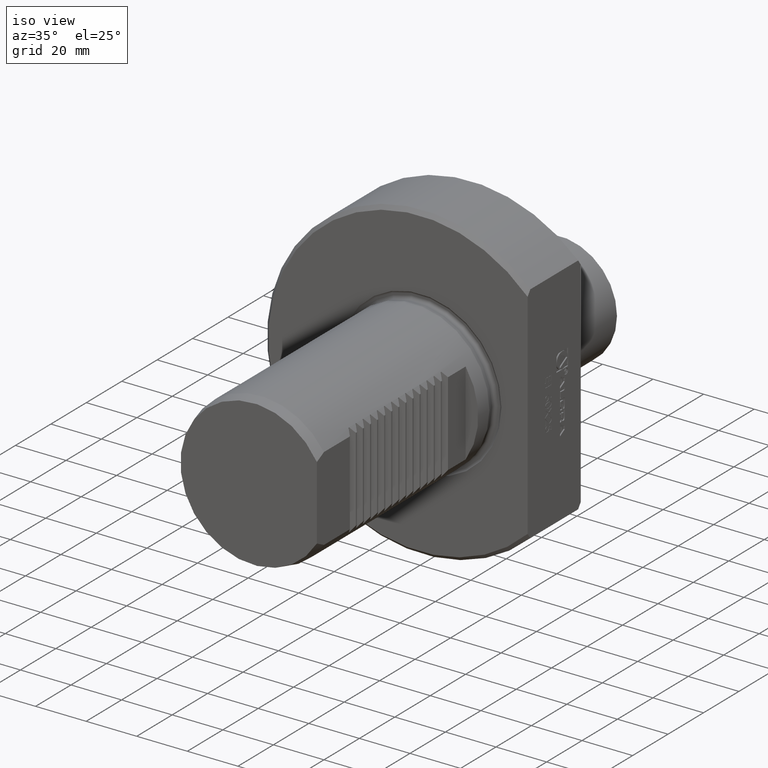
[diagram: clean part render]
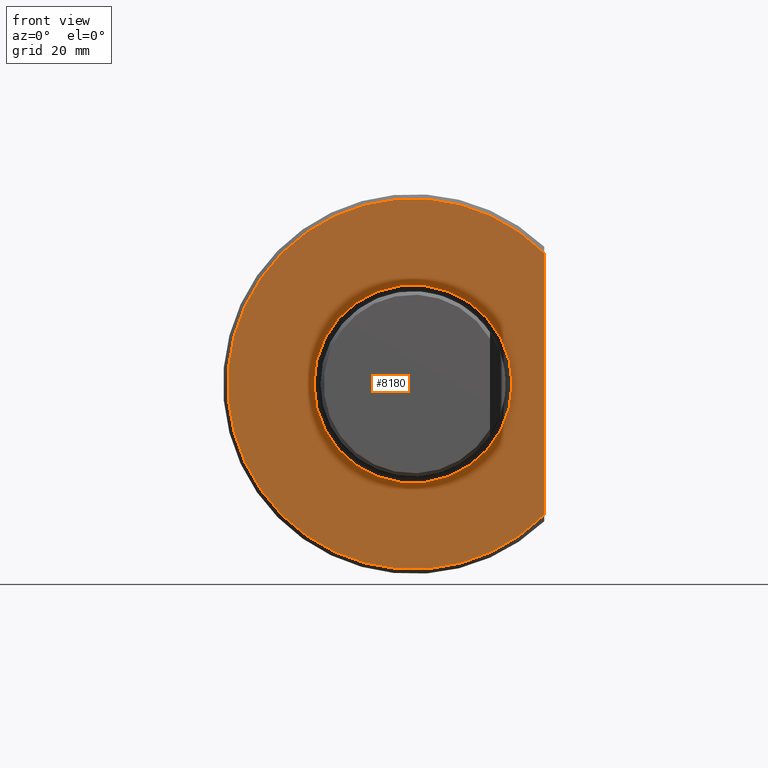
[diagram: tour spotlight — one face highlighted and labeled with its STEP entity id]
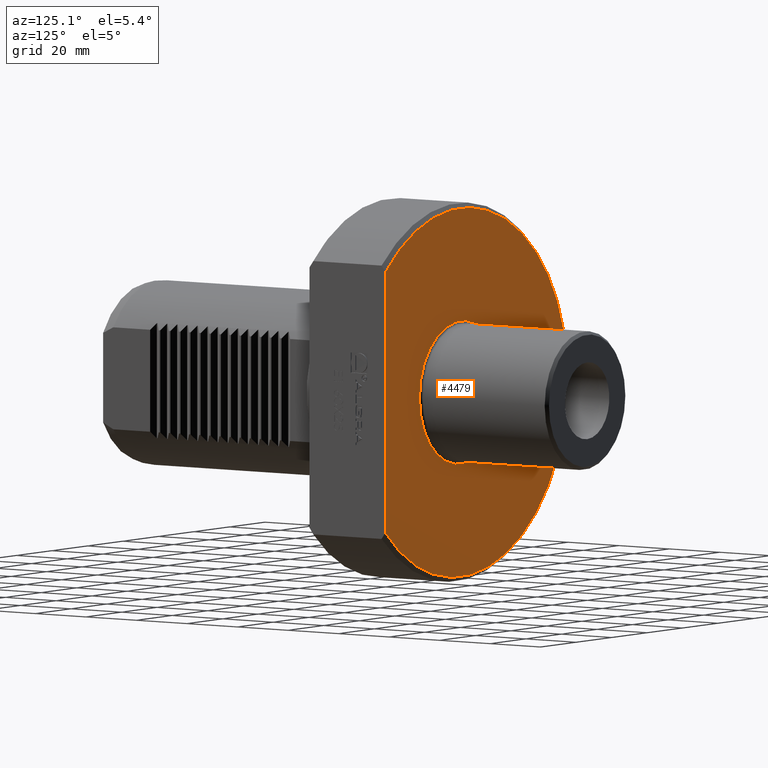
[diagram: tour spotlight — one face highlighted and labeled with its STEP entity id]
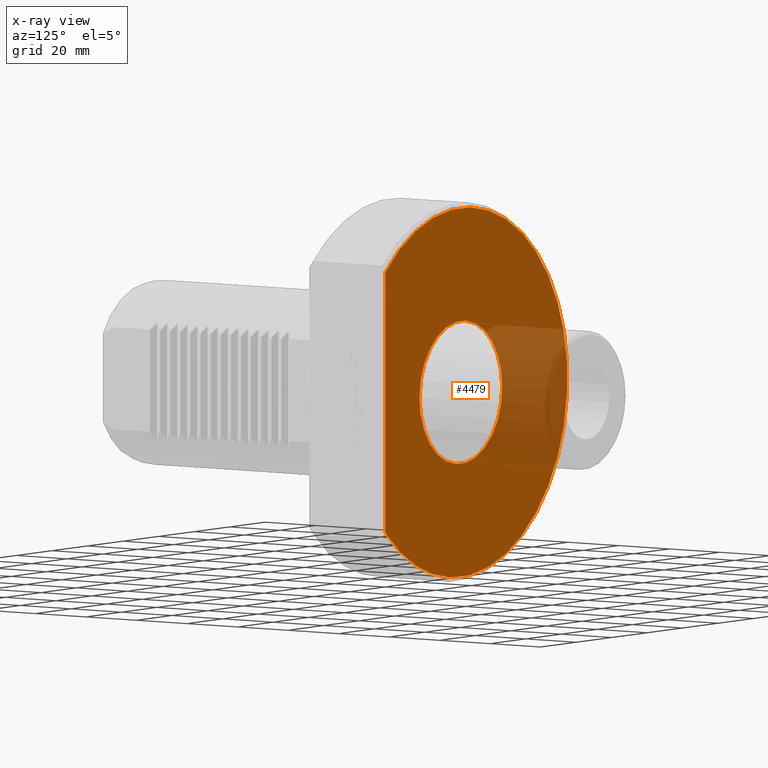
[diagram: x-ray of the same camera — body ghosted, this tour face saturated]
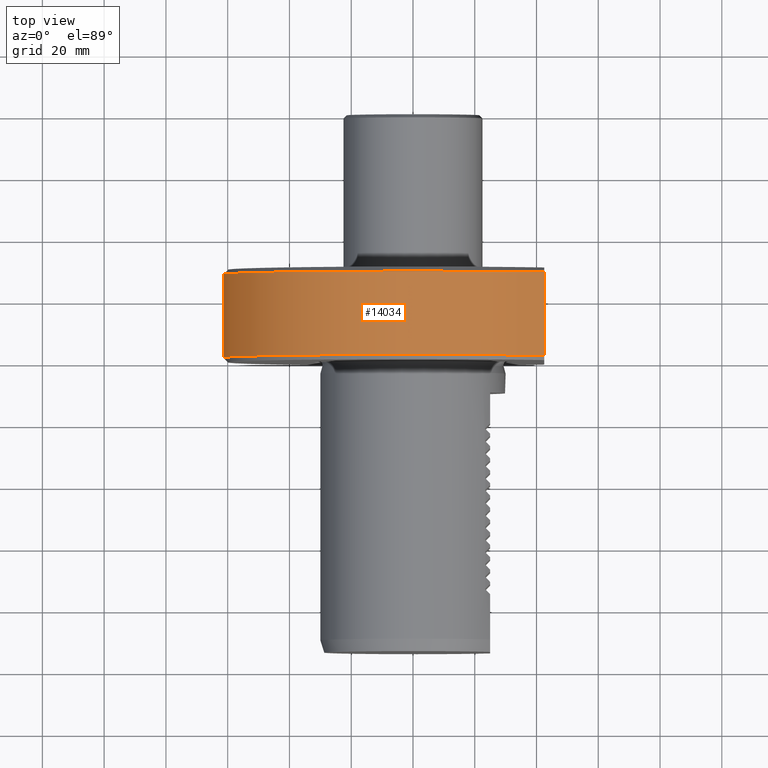
[diagram: tour spotlight — one face highlighted and labeled with its STEP entity id]
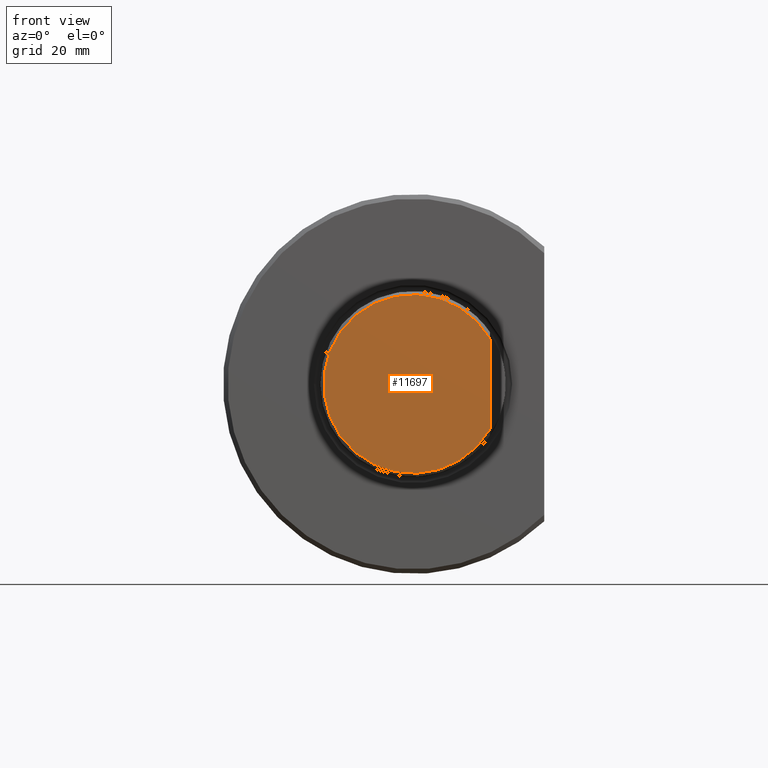
[diagram: tour spotlight — one face highlighted and labeled with its STEP entity id]
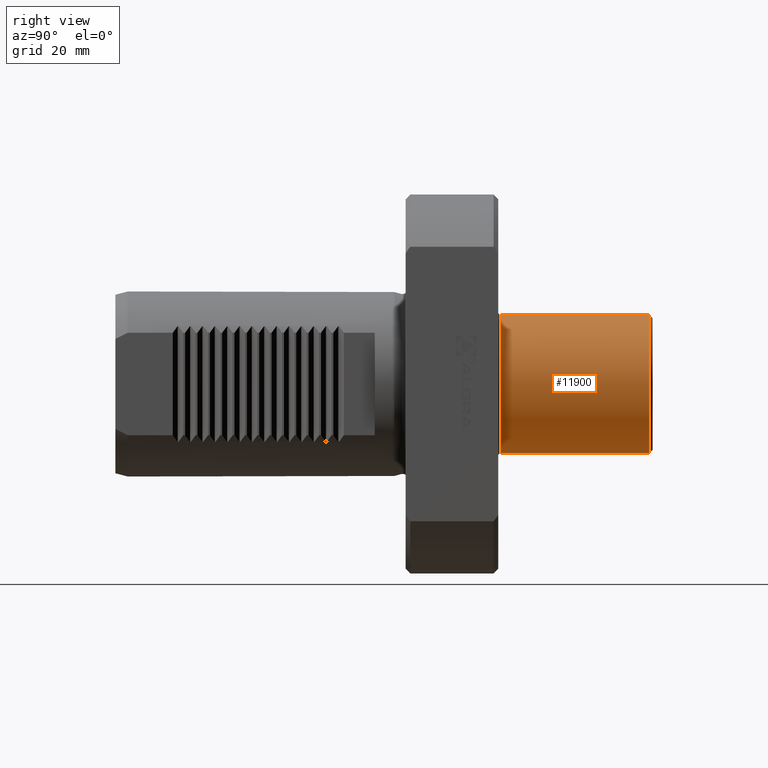
[diagram: tour spotlight — one face highlighted and labeled with its STEP entity id]
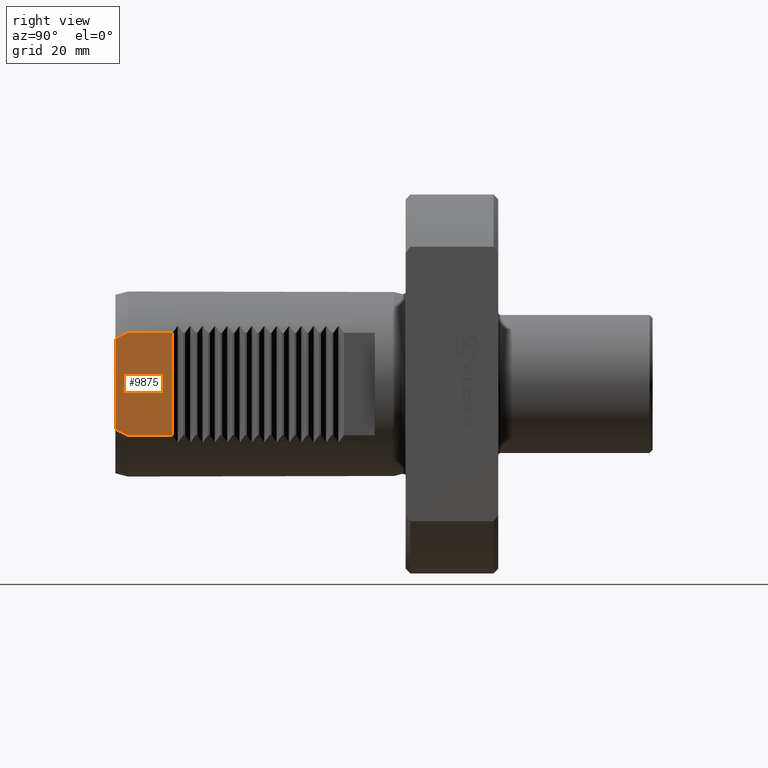
[diagram: tour spotlight — one face highlighted and labeled with its STEP entity id]
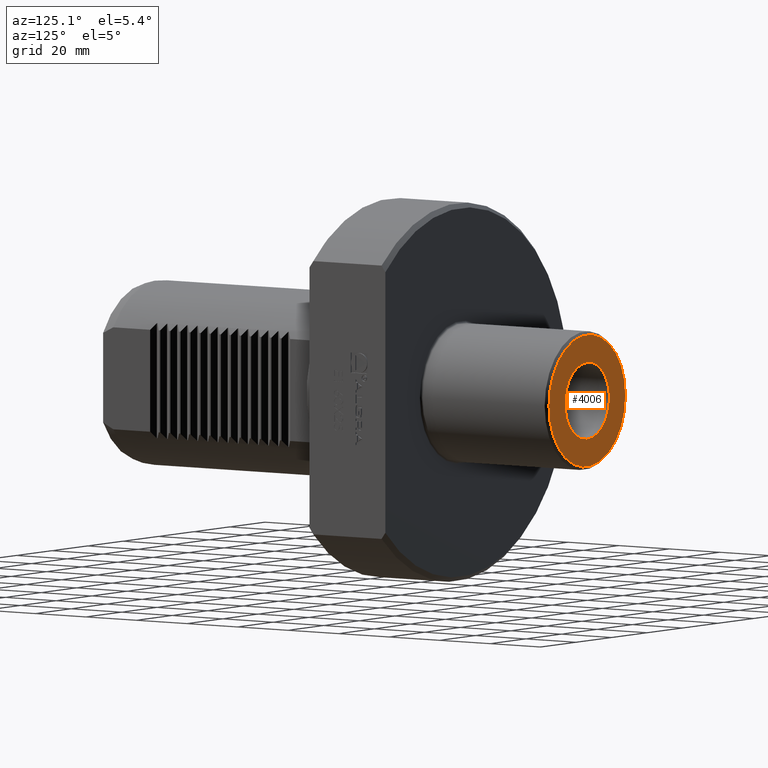
[diagram: tour spotlight — one face highlighted and labeled with its STEP entity id]
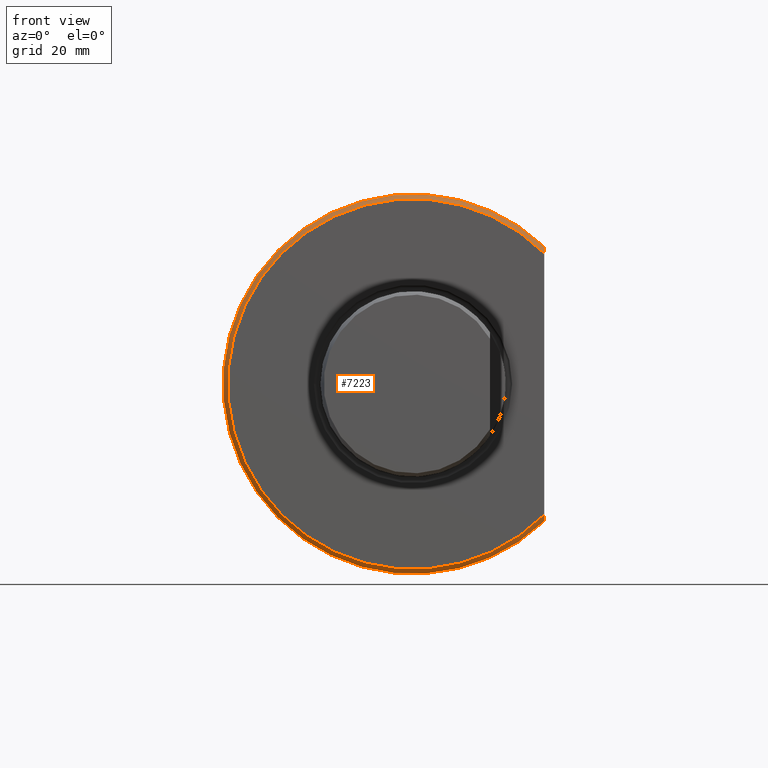
[diagram: tour spotlight — one face highlighted and labeled with its STEP entity id]
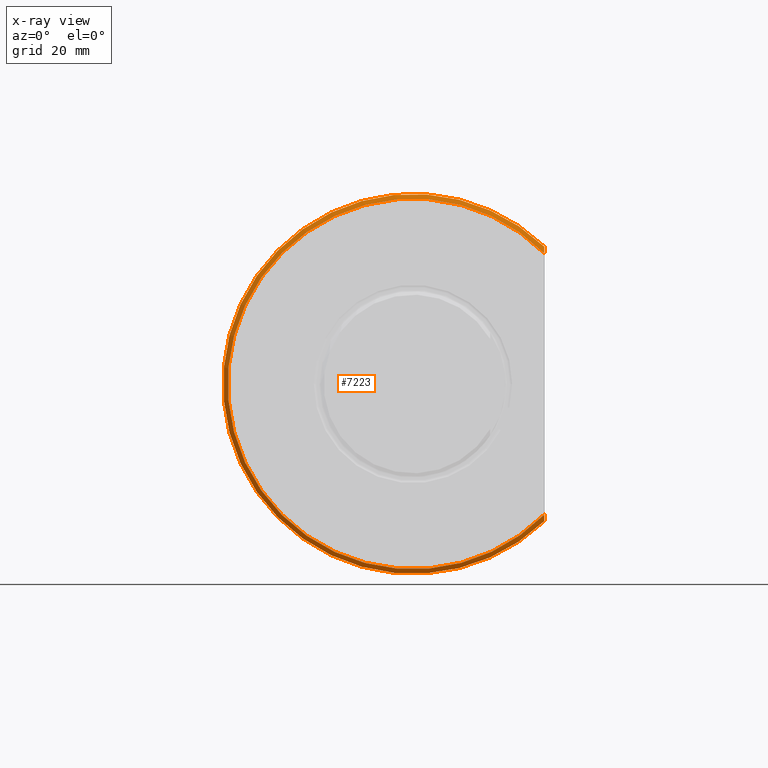
[diagram: x-ray of the same camera — body ghosted, this tour face saturated]
A machine part: a face-by-face anatomy tour. The part has 283 B-rep faces; the first image is the clean iso view, then the 8 largest visible faces are spotlighted one at a time (largest first), each with its STEP entity span.

Face 1 — front view, entity #8180. In plain terms, the highlighted planar face has unit normal (0, -1, 0).
Definition (entity closure, byte-faithful):
#385 = CARTESIAN_POINT ( 'NONE',  ( 42.49999999999999289, 9.254589815476564682E-15, -42.35268586524354362 ) ) ;
#429 = CARTESIAN_POINT ( 'NONE',  ( 42.50000000000000711, 1.281975731971740041E-14, 42.35268586524352941 ) ) ;
#660 = FACE_BOUND ( 'NONE', #4711, .T. ) ;
#895 = DIRECTION ( 'NONE',  ( -1.295371175675670281E-16, 1.000000000000000000, -0.000000000000000000 ) ) ;
#1060 = ORIENTED_EDGE ( 'NONE', *, *, #10142, .F. ) ;
#1361 = ORIENTED_EDGE ( 'NONE', *, *, #7985, .F. ) ;
#1800 = DIRECTION ( 'NONE',  ( -1.000000000000000000, -1.295371175675670281E-16, 0.000000000000000000 ) ) ;
#2127 = CIRCLE ( 'NONE', #10092, 60.00000000000000000 ) ;
#2177 = CARTESIAN_POINT ( 'NONE',  ( 42.50000000000000000, 9.156106121160882486E-15, -1.264699656675814893E-14 ) ) ;
#2284 = ORIENTED_EDGE ( 'NONE', *, *, #7030, .F. ) ;
#2754 = FACE_OUTER_BOUND ( 'NONE', #12183, .T. ) ;
#2838 = AXIS2_PLACEMENT_3D ( 'NONE', #4979, #8293, #8015 ) ;
#3626 = VECTOR ( 'NONE', #8748, 1000.000000000000000 ) ;
#4240 = LINE ( 'NONE', #2177, #3626 ) ;
#4711 = EDGE_LOOP ( 'NONE', ( #1361 ) ) ;
#4979 = CARTESIAN_POINT ( 'NONE',  ( -32.14999999999999147, -5.138397052579944321E-16, 0.000000000000000000 ) ) ;
#5609 = AXIS2_PLACEMENT_3D ( 'NONE', #11937, #9927, #10936 ) ;
#6810 = VERTEX_POINT ( 'NONE', #429 ) ;
#7030 = EDGE_CURVE ( 'NONE', #6810, #12728, #4240, .T. ) ;
#7627 = CARTESIAN_POINT ( 'NONE',  ( 32.09480944164828031, 7.735336273153617276E-15, 0.000000000000000000 ) ) ;
#7985 = EDGE_CURVE ( 'NONE', #11863, #11863, #12197, .T. ) ;
#8015 = DIRECTION ( 'NONE',  ( 1.000000000000000000, 1.295371175675670281E-16, 0.000000000000000000 ) ) ;
#8091 = PLANE ( 'NONE',  #2838 ) ;
#8180 = ADVANCED_FACE ( 'Defeature completata1_9', ( #2754, #660 ), #8091, .T. ) ;
#8293 = DIRECTION ( 'NONE',  ( 1.295371175675670281E-16, -1.000000000000000000, 0.000000000000000000 ) ) ;
#8748 = DIRECTION ( 'NONE',  ( -1.694172346518171389E-16, -2.194582024306452695E-32, -1.000000000000000000 ) ) ;
#9180 = CARTESIAN_POINT ( 'NONE',  ( -4.856686337891648901E-31, 3.749262318854966901E-15, 0.000000000000000000 ) ) ;
#9927 = DIRECTION ( 'NONE',  ( 1.295371175675670281E-16, -1.000000000000000000, 0.000000000000000000 ) ) ;
#10092 = AXIS2_PLACEMENT_3D ( 'NONE', #9180, #895, #1800 ) ;
#10142 = EDGE_CURVE ( 'NONE', #12728, #6810, #2127, .T. ) ;
#10936 = DIRECTION ( 'NONE',  ( 1.000000000000000000, 1.295371175675670281E-16, 0.000000000000000000 ) ) ;
#11863 = VERTEX_POINT ( 'NONE', #7627 ) ;
#11937 = CARTESIAN_POINT ( 'NONE',  ( -1.036296940540534203E-16, 3.577867169202164632E-15, 0.000000000000000000 ) ) ;
#12183 = EDGE_LOOP ( 'NONE', ( #2284, #1060 ) ) ;
#12197 = CIRCLE ( 'NONE', #5609, 32.09480944164828031 ) ;
#12728 = VERTEX_POINT ( 'NONE', #385 ) ;

Face 2 — auxiliary view, entity #4479. An x-ray twin of the same camera follows (body ghosted, this face saturated) — the face is partly hidden behind the body. In plain terms, the highlighted planar face has unit normal (-0, 1, 0).
Definition (entity closure, byte-faithful):
#524 = DIRECTION ( 'NONE',  ( -1.295371175675670281E-16, 1.000000000000000000, -0.000000000000000000 ) ) ;
#566 = VERTEX_POINT ( 'NONE', #11702 ) ;
#1414 = EDGE_LOOP ( 'NONE', ( #10128, #14024 ) ) ;
#1557 = DIRECTION ( 'NONE',  ( -1.000000000000000000, -1.156482317317871478E-16, 0.000000000000000000 ) ) ;
#2174 = CARTESIAN_POINT ( 'NONE',  ( -23.30000000000000071, 30.00000000000000000, 0.000000000000000000 ) ) ;
#2255 = CARTESIAN_POINT ( 'NONE',  ( 42.50000000000000000, 30.00000000000001421, -42.35268586524351520 ) ) ;
#2358 = CIRCLE ( 'NONE', #3487, 59.99999999999999289 ) ;
#2489 = PLANE ( 'NONE',  #6770 ) ;
#3487 = AXIS2_PLACEMENT_3D ( 'NONE', #10046, #524, #1557 ) ;
#3699 = CARTESIAN_POINT ( 'NONE',  ( -60.00000000000000000, 29.99999999999999645, 0.000000000000000000 ) ) ;
#4079 = DIRECTION ( 'NONE',  ( 1.694172346518171389E-16, 2.194582024306452695E-32, 1.000000000000000000 ) ) ;
#4394 = ORIENTED_EDGE ( 'NONE', *, *, #8593, .F. ) ;
#4479 = ADVANCED_FACE ( 'Defeature completata1_13', ( #13330, #8012 ), #2489, .T. ) ;
#5399 = DIRECTION ( 'NONE',  ( -1.295371175675670281E-16, 1.000000000000000000, -0.000000000000000000 ) ) ;
#5514 = AXIS2_PLACEMENT_3D ( 'NONE', #7702, #5399, #5692 ) ;
#5692 = DIRECTION ( 'NONE',  ( -1.000000000000000000, -1.489033026589534122E-16, 0.000000000000000000 ) ) ;
#6770 = AXIS2_PLACEMENT_3D ( 'NONE', #3699, #12409, #10038 ) ;
#7702 = CARTESIAN_POINT ( 'NONE',  ( -3.886113527027010941E-15, 30.00000000000000355, 0.000000000000000000 ) ) ;
#8012 = FACE_BOUND ( 'NONE', #9983, .T. ) ;
#8593 = EDGE_CURVE ( 'NONE', #11939, #11939, #11425, .T. ) ;
#9856 = EDGE_CURVE ( 'NONE', #13934, #566, #2358, .T. ) ;
#9983 = EDGE_LOOP ( 'NONE', ( #4394 ) ) ;
#10038 = DIRECTION ( 'NONE',  ( -1.000000000000000000, -1.295371175675670281E-16, 0.000000000000000000 ) ) ;
#10046 = CARTESIAN_POINT ( 'NONE',  ( -3.886113527027011730E-15, 30.00000000000000711, 0.000000000000000000 ) ) ;
#10128 = ORIENTED_EDGE ( 'NONE', *, *, #10555, .F. ) ;
#10355 = CARTESIAN_POINT ( 'NONE',  ( 42.50000000000000711, 30.00000000000001066, -1.736526655181126062E-14 ) ) ;
#10555 = EDGE_CURVE ( 'NONE', #13934, #566, #10570, .T. ) ;
#10570 = LINE ( 'NONE', #10355, #10711 ) ;
#10711 = VECTOR ( 'NONE', #4079, 1000.000000000000000 ) ;
#11425 = CIRCLE ( 'NONE', #5514, 23.29999999999999716 ) ;
#11702 = CARTESIAN_POINT ( 'NONE',  ( 42.50000000000000711, 30.00000000000001066, 42.35268586524350098 ) ) ;
#11939 = VERTEX_POINT ( 'NONE', #2174 ) ;
#12409 = DIRECTION ( 'NONE',  ( -1.295371175675670281E-16, 1.000000000000000000, 0.000000000000000000 ) ) ;
#13330 = FACE_OUTER_BOUND ( 'NONE', #1414, .T. ) ;
#13934 = VERTEX_POINT ( 'NONE', #2255 ) ;
#14024 = ORIENTED_EDGE ( 'NONE', *, *, #9856, .T. ) ;

Face 3 — top view, entity #14034. In plain terms, the highlighted cylindrical surface (partial cylindrical patch) has radius 61.5 mm, axis along (-0, 1, -0).
Definition (entity closure, byte-faithful):
#288 = AXIS2_PLACEMENT_3D ( 'NONE', #6275, #3971, #8811 ) ;
#406 = VERTEX_POINT ( 'NONE', #8955 ) ;
#699 = CARTESIAN_POINT ( 'NONE',  ( 0.000000000000000000, 0.000000000000000000, 0.000000000000000000 ) ) ;
#1796 = CARTESIAN_POINT ( 'NONE',  ( 42.50000000000000711, 1.499999999999995781, 44.45222154178572538 ) ) ;
#2522 = VERTEX_POINT ( 'NONE', #4049 ) ;
#2595 = VECTOR ( 'NONE', #11501, 1000.000000000000000 ) ;
#2782 = EDGE_CURVE ( 'NONE', #406, #6937, #8695, .T. ) ;
#3272 = CARTESIAN_POINT ( 'NONE',  ( 42.50000000000000711, 28.50000000000000711, 44.45222154178571117 ) ) ;
#3278 = CARTESIAN_POINT ( 'NONE',  ( 42.49999999999999289, 5.505327496621598570E-15, -44.45222154178573959 ) ) ;
#3429 = ORIENTED_EDGE ( 'NONE', *, *, #2782, .T. ) ;
#3963 = DIRECTION ( 'NONE',  ( -1.000000000000000000, -1.295371175675670281E-16, 0.000000000000000000 ) ) ;
#3971 = DIRECTION ( 'NONE',  ( -1.295371175675670281E-16, 1.000000000000000000, -0.000000000000000000 ) ) ;
#4027 = DIRECTION ( 'NONE',  ( -1.295371175675670281E-16, 1.000000000000000000, -0.000000000000000000 ) ) ;
#4049 = CARTESIAN_POINT ( 'NONE',  ( 42.49999999999998579, 28.49999999999999645, -44.45222154178573959 ) ) ;
#5173 = DIRECTION ( 'NONE',  ( -1.295371175675670281E-16, 1.000000000000000000, -0.000000000000000000 ) ) ;
#5304 = VECTOR ( 'NONE', #6749, 1000.000000000000000 ) ;
#5360 = VERTEX_POINT ( 'NONE', #3272 ) ;
#5433 = LINE ( 'NONE', #3278, #5304 ) ;
#6085 = ORIENTED_EDGE ( 'NONE', *, *, #9690, .F. ) ;
#6169 = CARTESIAN_POINT ( 'NONE',  ( 42.50000000000000711, 5.505327496621600148E-15, 44.45222154178572538 ) ) ;
#6275 = CARTESIAN_POINT ( 'NONE',  ( -1.943056763513510352E-16, 1.500000000000003775, 0.000000000000000000 ) ) ;
#6749 = DIRECTION ( 'NONE',  ( -1.295371175675670281E-16, 1.000000000000000000, -0.000000000000000000 ) ) ;
#6937 = VERTEX_POINT ( 'NONE', #1796 ) ;
#7351 = CYLINDRICAL_SURFACE ( 'NONE', #11447, 61.50000000000000000 ) ;
#7583 = CIRCLE ( 'NONE', #10040, 61.49999999999999289 ) ;
#7624 = ORIENTED_EDGE ( 'NONE', *, *, #13250, .F. ) ;
#8339 = EDGE_LOOP ( 'NONE', ( #7624, #8851, #6085, #3429 ) ) ;
#8695 = CIRCLE ( 'NONE', #288, 61.50000000000000000 ) ;
#8811 = DIRECTION ( 'NONE',  ( -1.000000000000000000, -1.304568467706135415E-16, 0.000000000000000000 ) ) ;
#8851 = ORIENTED_EDGE ( 'NONE', *, *, #10950, .F. ) ;
#8955 = CARTESIAN_POINT ( 'NONE',  ( 42.49999999999999289, 1.500000000000006439, -44.45222154178573959 ) ) ;
#9690 = EDGE_CURVE ( 'NONE', #406, #2522, #5433, .T. ) ;
#10040 = AXIS2_PLACEMENT_3D ( 'NONE', #10509, #5173, #11804 ) ;
#10411 = LINE ( 'NONE', #6169, #2595 ) ;
#10426 = FACE_OUTER_BOUND ( 'NONE', #8339, .T. ) ;
#10509 = CARTESIAN_POINT ( 'NONE',  ( -3.691807850675660867E-15, 28.50000000000000355, 0.000000000000000000 ) ) ;
#10950 = EDGE_CURVE ( 'NONE', #2522, #5360, #7583, .T. ) ;
#11447 = AXIS2_PLACEMENT_3D ( 'NONE', #699, #4027, #3963 ) ;
#11501 = DIRECTION ( 'NONE',  ( 1.295371175675670281E-16, -1.000000000000000000, 0.000000000000000000 ) ) ;
#11804 = DIRECTION ( 'NONE',  ( -1.000000000000000000, -1.128275431529630729E-16, 0.000000000000000000 ) ) ;
#13250 = EDGE_CURVE ( 'NONE', #5360, #6937, #10411, .T. ) ;
#14034 = ADVANCED_FACE ( 'Defeature completata1_11', ( #10426 ), #7351, .T. ) ;

Face 4 — front view, entity #11697. In plain terms, the highlighted planar face has unit normal (0, -1, 0).
Definition (entity closure, byte-faithful):
#1487 = VERTEX_POINT ( 'NONE', #5367 ) ;
#1564 = CARTESIAN_POINT ( 'NONE',  ( 24.99999999999995026, -93.99999999999998579, 0.000000000000000000 ) ) ;
#2074 = AXIS2_PLACEMENT_3D ( 'NONE', #9806, #10966, #10675 ) ;
#2267 = CIRCLE ( 'NONE', #2491, 28.92820323027550344 ) ;
#2491 = AXIS2_PLACEMENT_3D ( 'NONE', #9302, #5237, #3002 ) ;
#3002 = DIRECTION ( 'NONE',  ( -1.000000000000000000, 0.000000000000000000, 0.000000000000000000 ) ) ;
#3571 = EDGE_LOOP ( 'NONE', ( #5295, #6751 ) ) ;
#5237 = DIRECTION ( 'NONE',  ( -1.295371175675670281E-16, 1.000000000000000000, -0.000000000000000000 ) ) ;
#5295 = ORIENTED_EDGE ( 'NONE', *, *, #6864, .F. ) ;
#5367 = CARTESIAN_POINT ( 'NONE',  ( 24.99999999999995026, -94.00000000000000000, 14.55475668405780176 ) ) ;
#6573 = FACE_OUTER_BOUND ( 'NONE', #3571, .T. ) ;
#6751 = ORIENTED_EDGE ( 'NONE', *, *, #13416, .T. ) ;
#6864 = EDGE_CURVE ( 'NONE', #9253, #1487, #2267, .T. ) ;
#8777 = VECTOR ( 'NONE', #10059, 1000.000000000000000 ) ;
#9253 = VERTEX_POINT ( 'NONE', #13809 ) ;
#9302 = CARTESIAN_POINT ( 'NONE',  ( 1.217648905135130074E-14, -94.00000000000000000, 0.000000000000000000 ) ) ;
#9806 = CARTESIAN_POINT ( 'NONE',  ( -28.92820323027548923, -94.00000000000000000, 0.000000000000000000 ) ) ;
#10059 = DIRECTION ( 'NONE',  ( 0.000000000000000000, 0.000000000000000000, 1.000000000000000000 ) ) ;
#10675 = DIRECTION ( 'NONE',  ( 1.000000000000000000, 1.295371175675670281E-16, 0.000000000000000000 ) ) ;
#10966 = DIRECTION ( 'NONE',  ( 1.295371175675670281E-16, -1.000000000000000000, 0.000000000000000000 ) ) ;
#11358 = LINE ( 'NONE', #1564, #8777 ) ;
#11697 = ADVANCED_FACE ( 'Defeature completata1_2', ( #6573 ), #11760, .T. ) ;
#11760 = PLANE ( 'NONE',  #2074 ) ;
#13416 = EDGE_CURVE ( 'NONE', #9253, #1487, #11358, .T. ) ;
#13809 = CARTESIAN_POINT ( 'NONE',  ( 24.99999999999995026, -94.00000000000000000, -14.55475668405780176 ) ) ;

Face 5 — right view, entity #11900. In plain terms, the highlighted cylindrical surface (bore or boss wall) has radius 22.5 mm, axis along (-0, 1, -0).
Definition (entity closure, byte-faithful):
#1279 = DIRECTION ( 'NONE',  ( -1.000000000000000000, -1.295371175675670281E-16, 0.000000000000000000 ) ) ;
#1692 = DIRECTION ( 'NONE',  ( -1.295371175675670281E-16, 1.000000000000000000, -0.000000000000000000 ) ) ;
#2130 = DIRECTION ( 'NONE',  ( -1.295371175675670281E-16, 1.000000000000000000, -0.000000000000000000 ) ) ;
#2495 = DIRECTION ( 'NONE',  ( -1.295371175675670281E-16, 1.000000000000000000, -0.000000000000000000 ) ) ;
#2555 = EDGE_CURVE ( 'NONE', #7835, #7835, #12787, .T. ) ;
#2756 = CARTESIAN_POINT ( 'NONE',  ( -3.989743221081063893E-15, 30.79999999999999716, 0.000000000000000000 ) ) ;
#3026 = CARTESIAN_POINT ( 'NONE',  ( -1.023343228783779369E-14, 78.99999999999998579, 0.000000000000000000 ) ) ;
#3496 = CYLINDRICAL_SURFACE ( 'NONE', #13018, 22.49999999999999289 ) ;
#4819 = CIRCLE ( 'NONE', #6673, 22.50000000000000000 ) ;
#6171 = ORIENTED_EDGE ( 'NONE', *, *, #2555, .F. ) ;
#6545 = VERTEX_POINT ( 'NONE', #13360 ) ;
#6673 = AXIS2_PLACEMENT_3D ( 'NONE', #2756, #1692, #12634 ) ;
#6969 = CARTESIAN_POINT ( 'NONE',  ( 0.000000000000000000, 0.000000000000000000, 0.000000000000000000 ) ) ;
#7835 = VERTEX_POINT ( 'NONE', #9930 ) ;
#7836 = ORIENTED_EDGE ( 'NONE', *, *, #11540, .T. ) ;
#8815 = EDGE_LOOP ( 'NONE', ( #6171 ) ) ;
#8858 = FACE_OUTER_BOUND ( 'NONE', #8815, .T. ) ;
#9595 = DIRECTION ( 'NONE',  ( -1.000000000000000000, 0.000000000000000000, 0.000000000000000000 ) ) ;
#9904 = FACE_OUTER_BOUND ( 'NONE', #11669, .T. ) ;
#9930 = CARTESIAN_POINT ( 'NONE',  ( -22.50000000000000000, 78.99999999999998579, 0.000000000000000000 ) ) ;
#10034 = AXIS2_PLACEMENT_3D ( 'NONE', #3026, #2130, #9595 ) ;
#11540 = EDGE_CURVE ( 'NONE', #6545, #6545, #4819, .T. ) ;
#11669 = EDGE_LOOP ( 'NONE', ( #7836 ) ) ;
#11900 = ADVANCED_FACE ( 'Defeature completata1_15', ( #9904, #8858 ), #3496, .T. ) ;
#12634 = DIRECTION ( 'NONE',  ( -1.000000000000000000, -1.541976423090495140E-16, 0.000000000000000000 ) ) ;
#12787 = CIRCLE ( 'NONE', #10034, 22.49999999999998934 ) ;
#13018 = AXIS2_PLACEMENT_3D ( 'NONE', #6969, #2495, #1279 ) ;
#13360 = CARTESIAN_POINT ( 'NONE',  ( -22.50000000000000355, 30.79999999999999361, 0.000000000000000000 ) ) ;

Face 6 — right view, entity #9875. In plain terms, the highlighted planar face has unit normal (1, -0, 0).
Definition (entity closure, byte-faithful):
#337 = EDGE_CURVE ( 'NONE', #1487, #10362, #13270, .T. ) ;
#509 = LINE ( 'NONE', #10514, #13419 ) ;
#773 = AXIS2_PLACEMENT_3D ( 'NONE', #3711, #5732, #7952 ) ;
#943 = VECTOR ( 'NONE', #4963, 1000.000000000000000 ) ;
#967 = EDGE_CURVE ( 'NONE', #10362, #13891, #509, .T. ) ;
#1400 = CARTESIAN_POINT ( 'NONE',  ( 24.99999999999995381, -75.39999999999960778, 34.00000000000000711 ) ) ;
#1450 = ORIENTED_EDGE ( 'NONE', *, *, #13416, .F. ) ;
#1471 = VECTOR ( 'NONE', #1920, 1000.000000000000000 ) ;
#1487 = VERTEX_POINT ( 'NONE', #5367 ) ;
#1564 = CARTESIAN_POINT ( 'NONE',  ( 24.99999999999995026, -93.99999999999998579, 0.000000000000000000 ) ) ;
#1920 = DIRECTION ( 'NONE',  ( 1.295371175675670281E-16, -1.000000000000000000, 0.000000000000000000 ) ) ;
#2016 = CARTESIAN_POINT ( 'NONE',  ( 24.99999999999995381, -90.00000000000000000, 16.58312395177707899 ) ) ;
#2306 = CARTESIAN_POINT ( 'NONE',  ( 24.99999999999995381, -92.67799987832697184, 15.25880174774903431 ) ) ;
#2326 = CARTESIAN_POINT ( 'NONE',  ( 24.99999999999995381, -90.00000000000000000, 16.58312395177707899 ) ) ;
#2486 = EDGE_LOOP ( 'NONE', ( #4650, #6455, #10218, #1450, #13737, #3803 ) ) ;
#2873 = CARTESIAN_POINT ( 'NONE',  ( 24.99999999999995026, -94.00000000000000000, -14.55475668405780176 ) ) ;
#3568 = FACE_OUTER_BOUND ( 'NONE', #2486, .T. ) ;
#3632 = B_SPLINE_CURVE_WITH_KNOTS ( 'NONE', 3,
 ( #5034, #5105, #7354, #2873 ),
 .UNSPECIFIED., .F., .F.,
 ( 4, 4 ),
 ( 0.03878717527109275948, 0.04326784613288441744 ),
 .UNSPECIFIED. ) ;
#3711 = CARTESIAN_POINT ( 'NONE',  ( 24.99999999999996092, -1.893366462829680833E-15, 34.00000000000000711 ) ) ;
#3734 = VERTEX_POINT ( 'NONE', #13538 ) ;
#3803 = ORIENTED_EDGE ( 'NONE', *, *, #13543, .F. ) ;
#4371 = CARTESIAN_POINT ( 'NONE',  ( 24.99999999999995381, -91.34344165180507957, 15.93190629207744102 ) ) ;
#4650 = ORIENTED_EDGE ( 'NONE', *, *, #10816, .F. ) ;
#4747 = EDGE_CURVE ( 'NONE', #3734, #9253, #3632, .T. ) ;
#4963 = DIRECTION ( 'NONE',  ( -0.000000000000000000, -0.000000000000000000, -1.000000000000000000 ) ) ;
#5034 = CARTESIAN_POINT ( 'NONE',  ( 24.99999999999995381, -90.00000000000000000, -16.58312395177707899 ) ) ;
#5105 = CARTESIAN_POINT ( 'NONE',  ( 24.99999999999995381, -91.34492987188885138, -15.93118489476274391 ) ) ;
#5367 = CARTESIAN_POINT ( 'NONE',  ( 24.99999999999995026, -94.00000000000000000, 14.55475668405780176 ) ) ;
#5732 = DIRECTION ( 'NONE',  ( 1.000000000000000000, -7.573465851318735755E-17, 0.000000000000000000 ) ) ;
#6455 = ORIENTED_EDGE ( 'NONE', *, *, #967, .F. ) ;
#6823 = PLANE ( 'NONE',  #773 ) ;
#7354 = CARTESIAN_POINT ( 'NONE',  ( 24.99999999999995381, -92.68055137968970314, -15.25744291887303561 ) ) ;
#7707 = CARTESIAN_POINT ( 'NONE',  ( 24.99999999999995381, -75.39999999999960778, 16.58312395177706122 ) ) ;
#7952 = DIRECTION ( 'NONE',  ( 7.573465851318735755E-17, 1.000000000000000000, 0.000000000000000000 ) ) ;
#8597 = CARTESIAN_POINT ( 'NONE',  ( 24.99999999999995026, -94.00000000000000000, 14.55475668405780176 ) ) ;
#8777 = VECTOR ( 'NONE', #10059, 1000.000000000000000 ) ;
#9253 = VERTEX_POINT ( 'NONE', #13809 ) ;
#9274 = CARTESIAN_POINT ( 'NONE',  ( 24.99999999999996092, -1.893366462829680833E-15, -16.58312395177706122 ) ) ;
#9448 = DIRECTION ( 'NONE',  ( -1.295371175675670281E-16, 1.000000000000000000, -0.000000000000000000 ) ) ;
#9875 = ADVANCED_FACE ( 'Defeature completata1_21', ( #3568 ), #6823, .T. ) ;
#10059 = DIRECTION ( 'NONE',  ( 0.000000000000000000, 0.000000000000000000, 1.000000000000000000 ) ) ;
#10218 = ORIENTED_EDGE ( 'NONE', *, *, #337, .F. ) ;
#10362 = VERTEX_POINT ( 'NONE', #2326 ) ;
#10514 = CARTESIAN_POINT ( 'NONE',  ( 24.99999999999996092, -1.893366462829680833E-15, 16.58312395177706122 ) ) ;
#10816 = EDGE_CURVE ( 'NONE', #13891, #11287, #14097, .T. ) ;
#11287 = VERTEX_POINT ( 'NONE', #11930 ) ;
#11358 = LINE ( 'NONE', #1564, #8777 ) ;
#11694 = LINE ( 'NONE', #9274, #1471 ) ;
#11930 = CARTESIAN_POINT ( 'NONE',  ( 24.99999999999995381, -75.39999999999960778, -16.58312395177705767 ) ) ;
#13270 = B_SPLINE_CURVE_WITH_KNOTS ( 'NONE', 3,
 ( #8597, #2306, #4371, #2016 ),
 .UNSPECIFIED., .F., .F.,
 ( 4, 4 ),
 ( 0.08633888696308296418, 0.09084761428899036650 ),
 .UNSPECIFIED. ) ;
#13416 = EDGE_CURVE ( 'NONE', #9253, #1487, #11358, .T. ) ;
#13419 = VECTOR ( 'NONE', #9448, 1000.000000000000000 ) ;
#13538 = CARTESIAN_POINT ( 'NONE',  ( 24.99999999999995381, -90.00000000000000000, -16.58312395177707899 ) ) ;
#13543 = EDGE_CURVE ( 'NONE', #11287, #3734, #11694, .T. ) ;
#13737 = ORIENTED_EDGE ( 'NONE', *, *, #4747, .F. ) ;
#13809 = CARTESIAN_POINT ( 'NONE',  ( 24.99999999999995026, -94.00000000000000000, -14.55475668405780176 ) ) ;
#13891 = VERTEX_POINT ( 'NONE', #7707 ) ;
#14097 = LINE ( 'NONE', #1400, #943 ) ;

Face 7 — auxiliary view, entity #4006. In plain terms, the highlighted planar face has unit normal (-0, 1, 0).
Definition (entity closure, byte-faithful):
#439 = DIRECTION ( 'NONE',  ( -0.000000000000000000, 1.000000000000000000, -0.000000000000000000 ) ) ;
#442 = ORIENTED_EDGE ( 'NONE', *, *, #5799, .T. ) ;
#779 = VERTEX_POINT ( 'NONE', #7096 ) ;
#796 = AXIS2_PLACEMENT_3D ( 'NONE', #11940, #13016, #6399 ) ;
#1678 = CARTESIAN_POINT ( 'NONE',  ( -1.036296940540535988E-14, 79.99999999999998579, 0.000000000000000000 ) ) ;
#1952 = FACE_OUTER_BOUND ( 'NONE', #6798, .T. ) ;
#3737 = EDGE_LOOP ( 'NONE', ( #12200 ) ) ;
#4006 = ADVANCED_FACE ( 'Defeature completata1_17', ( #8746, #1952 ), #10642, .T. ) ;
#4521 = VERTEX_POINT ( 'NONE', #6776 ) ;
#5799 = EDGE_CURVE ( 'NONE', #4521, #4521, #8854, .T. ) ;
#6208 = CARTESIAN_POINT ( 'NONE',  ( -1.036296940540535830E-14, 79.99999999999997158, 0.000000000000000000 ) ) ;
#6399 = DIRECTION ( 'NONE',  ( -1.000000000000000000, -1.295371175675670281E-16, 0.000000000000000000 ) ) ;
#6776 = CARTESIAN_POINT ( 'NONE',  ( -21.50000000000000000, 79.99999999999997158, 0.000000000000000000 ) ) ;
#6798 = EDGE_LOOP ( 'NONE', ( #442 ) ) ;
#7096 = CARTESIAN_POINT ( 'NONE',  ( -1.036296940540535988E-14, 79.99999999999998579, 12.50000000000001421 ) ) ;
#8403 = AXIS2_PLACEMENT_3D ( 'NONE', #6208, #12624, #9315 ) ;
#8746 = FACE_BOUND ( 'NONE', #3737, .T. ) ;
#8854 = CIRCLE ( 'NONE', #8403, 21.49999999999999289 ) ;
#9155 = CIRCLE ( 'NONE', #13243, 12.50000000000001421 ) ;
#9315 = DIRECTION ( 'NONE',  ( -1.000000000000000000, 0.000000000000000000, 0.000000000000000000 ) ) ;
#10642 = PLANE ( 'NONE',  #796 ) ;
#11940 = CARTESIAN_POINT ( 'NONE',  ( -21.50000000000000000, 79.99999999999998579, 0.000000000000000000 ) ) ;
#12166 = EDGE_CURVE ( 'NONE', #779, #779, #9155, .T. ) ;
#12200 = ORIENTED_EDGE ( 'NONE', *, *, #12166, .F. ) ;
#12624 = DIRECTION ( 'NONE',  ( -1.295371175675670281E-16, 1.000000000000000000, -0.000000000000000000 ) ) ;
#13016 = DIRECTION ( 'NONE',  ( -1.295371175675670281E-16, 1.000000000000000000, 0.000000000000000000 ) ) ;
#13243 = AXIS2_PLACEMENT_3D ( 'NONE', #1678, #439, #13529 ) ;
#13529 = DIRECTION ( 'NONE',  ( 0.000000000000000000, 0.000000000000000000, 1.000000000000000000 ) ) ;

Face 8 — front view, entity #7223. An x-ray twin of the same camera follows (body ghosted, this face saturated) — the face is partly hidden behind the body. In plain terms, the highlighted conical surface has half-angle 45 deg.
Definition (entity closure, byte-faithful):
#44 = CARTESIAN_POINT ( 'NONE',  ( 42.50000000000000711, 1.281975731971740041E-14, 42.35268586524352941 ) ) ;
#288 = AXIS2_PLACEMENT_3D ( 'NONE', #6275, #3971, #8811 ) ;
#377 = EDGE_LOOP ( 'NONE', ( #9133, #3738, #7505, #905 ) ) ;
#385 = CARTESIAN_POINT ( 'NONE',  ( 42.49999999999999289, 9.254589815476564682E-15, -42.35268586524354362 ) ) ;
#406 = VERTEX_POINT ( 'NONE', #8955 ) ;
#429 = CARTESIAN_POINT ( 'NONE',  ( 42.50000000000000711, 1.281975731971740041E-14, 42.35268586524352941 ) ) ;
#895 = DIRECTION ( 'NONE',  ( -1.295371175675670281E-16, 1.000000000000000000, -0.000000000000000000 ) ) ;
#905 = ORIENTED_EDGE ( 'NONE', *, *, #10142, .T. ) ;
#1339 = CARTESIAN_POINT ( 'NONE',  ( 42.49999999999999289, 9.254589815476564682E-15, -42.35268586524354362 ) ) ;
#1796 = CARTESIAN_POINT ( 'NONE',  ( 42.50000000000000711, 1.499999999999995781, 44.45222154178572538 ) ) ;
#1800 = DIRECTION ( 'NONE',  ( -1.000000000000000000, -1.295371175675670281E-16, 0.000000000000000000 ) ) ;
#2127 = CIRCLE ( 'NONE', #10092, 60.00000000000000000 ) ;
#2782 = EDGE_CURVE ( 'NONE', #406, #6937, #8695, .T. ) ;
#3738 = ORIENTED_EDGE ( 'NONE', *, *, #2782, .F. ) ;
#3971 = DIRECTION ( 'NONE',  ( -1.295371175675670281E-16, 1.000000000000000000, -0.000000000000000000 ) ) ;
#4088 = CONICAL_SURFACE ( 'NONE', #10450, 61.50000000000000000, 0.7853981633974487231 ) ;
#4501 = EDGE_CURVE ( 'NONE', #12728, #406, #11305, .T. ) ;
#4703 = CARTESIAN_POINT ( 'NONE',  ( 42.49999999999999289, 1.500000000000006439, -44.45222154178573959 ) ) ;
#5391 = CARTESIAN_POINT ( 'NONE',  ( 42.50000000000000711, 0.9957888083259246459, 43.75464137115674390 ) ) ;
#5517 = DIRECTION ( 'NONE',  ( -1.295371175675670281E-16, 1.000000000000000000, -0.000000000000000000 ) ) ;
#6275 = CARTESIAN_POINT ( 'NONE',  ( -1.943056763513510352E-16, 1.500000000000003775, 0.000000000000000000 ) ) ;
#6722 = B_SPLINE_CURVE_WITH_KNOTS ( 'NONE', 3,
 ( #12088, #5391, #9715, #44 ),
 .UNSPECIFIED., .F., .F.,
 ( 4, 4 ),
 ( 1.184489779794245993E-06, 0.002560764092036673083 ),
 .UNSPECIFIED. ) ;
#6810 = VERTEX_POINT ( 'NONE', #429 ) ;
#6937 = VERTEX_POINT ( 'NONE', #1796 ) ;
#7042 = EDGE_CURVE ( 'NONE', #6937, #6810, #6722, .T. ) ;
#7223 = ADVANCED_FACE ( 'Defeature completata1_10', ( #10700 ), #4088, .T. ) ;
#7505 = ORIENTED_EDGE ( 'NONE', *, *, #4501, .F. ) ;
#8589 = CARTESIAN_POINT ( 'NONE',  ( -1.943056763513510352E-16, 1.500000000000003775, 0.000000000000000000 ) ) ;
#8695 = CIRCLE ( 'NONE', #288, 61.50000000000000000 ) ;
#8811 = DIRECTION ( 'NONE',  ( -1.000000000000000000, -1.304568467706135415E-16, 0.000000000000000000 ) ) ;
#8928 = CARTESIAN_POINT ( 'NONE',  ( 42.49999999999999289, 0.4957946406845215037, -43.05506584028741912 ) ) ;
#8955 = CARTESIAN_POINT ( 'NONE',  ( 42.49999999999999289, 1.500000000000006439, -44.45222154178573959 ) ) ;
#9133 = ORIENTED_EDGE ( 'NONE', *, *, #7042, .F. ) ;
#9180 = CARTESIAN_POINT ( 'NONE',  ( -4.856686337891648901E-31, 3.749262318854966901E-15, 0.000000000000000000 ) ) ;
#9715 = CARTESIAN_POINT ( 'NONE',  ( 42.50000000000000711, 0.4956550520523327341, 43.05486808853304836 ) ) ;
#10092 = AXIS2_PLACEMENT_3D ( 'NONE', #9180, #895, #1800 ) ;
#10142 = EDGE_CURVE ( 'NONE', #12728, #6810, #2127, .T. ) ;
#10450 = AXIS2_PLACEMENT_3D ( 'NONE', #8589, #5517, #13141 ) ;
#10700 = FACE_OUTER_BOUND ( 'NONE', #377, .T. ) ;
#11305 = B_SPLINE_CURVE_WITH_KNOTS ( 'NONE', 3,
 ( #1339, #8928, #13262, #4703 ),
 .UNSPECIFIED., .F., .F.,
 ( 4, 4 ),
 ( 0.09460675343373402268, 0.09714162107545640246 ),
 .UNSPECIFIED. ) ;
#12088 = CARTESIAN_POINT ( 'NONE',  ( 42.50000000000000711, 1.499999999999995781, 44.45222154178572538 ) ) ;
#12728 = VERTEX_POINT ( 'NONE', #385 ) ;
#13141 = DIRECTION ( 'NONE',  ( -1.000000000000000000, -1.304568467706135415E-16, 0.000000000000000000 ) ) ;
#13262 = CARTESIAN_POINT ( 'NONE',  ( 42.49999999999999289, 0.9959263589745595002, -43.75483167356679814 ) ) ;